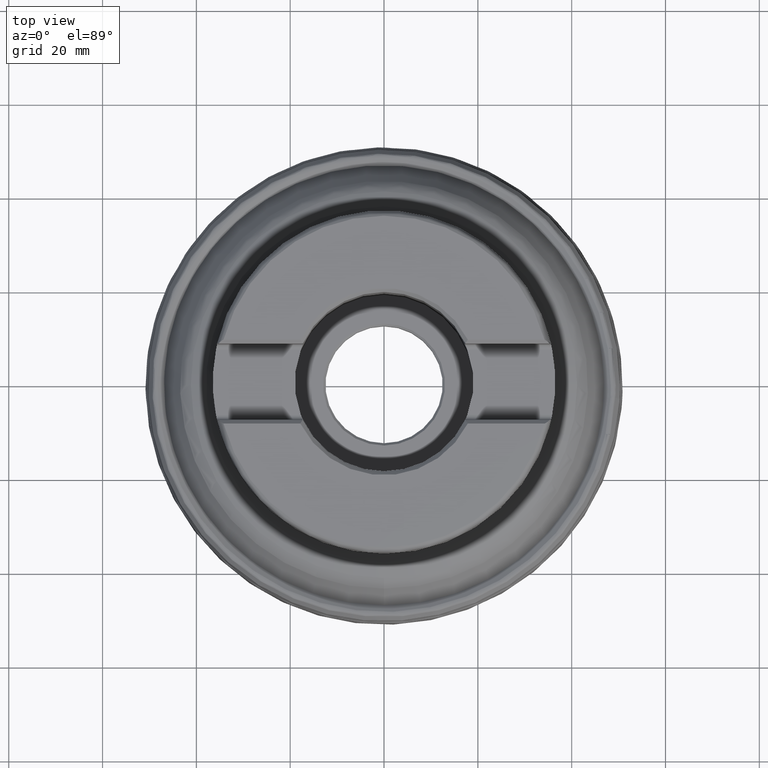
[diagram: clean part render]
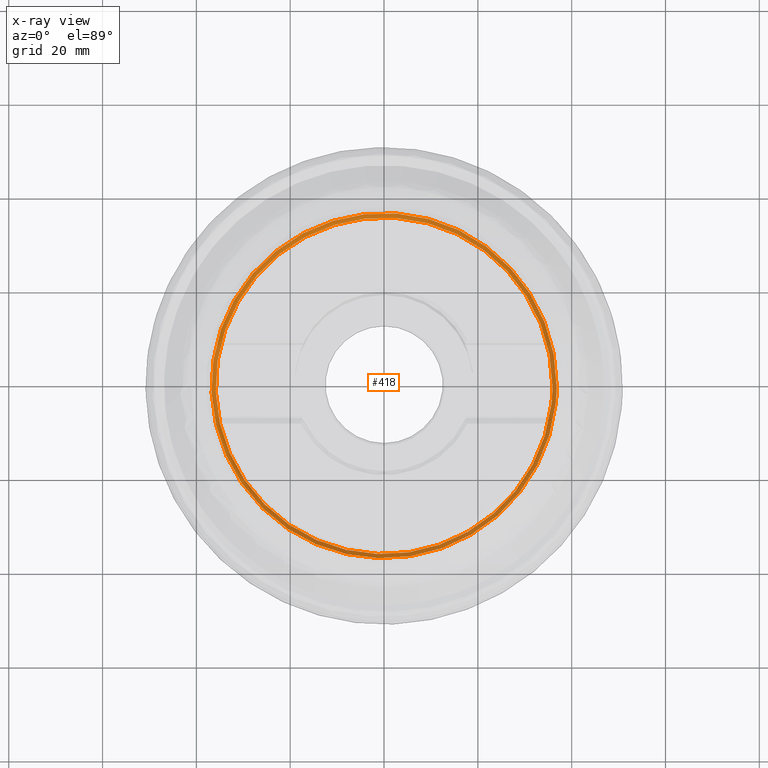
[diagram: x-ray — body ghosted, one internal face saturated and labeled with its STEP entity id]
A machine part, top view, then the same camera in x-ray: the body is ghosted and one INTERNAL B-rep face — a face not visible from any outside direction — is saturated and labeled: STEP entity #418.
In plain terms, the highlighted face is a SurfaceOfRevolution surface.
Its self-contained STEP definition (entity closure, byte-faithful):
#115=SURFACE_OF_REVOLUTION('',#627,#136);
#136=AXIS1_PLACEMENT('',#2319,#1527);
#247=FACE_BOUND('',#567,.T.);
#248=FACE_BOUND('',#568,.T.);
#346=CIRCLE('',#1276,36.7892926203194);
#347=CIRCLE('',#1277,35.8831424024006);
#418=ADVANCED_FACE('',(#247,#248),#115,.F.);
#567=EDGE_LOOP('',(#857));
#568=EDGE_LOOP('',(#858));
#627=LINE('',#2318,#654);
#654=VECTOR('',#1526,1.79261888849913);
#857=ORIENTED_EDGE('',*,*,#1089,.T.);
#858=ORIENTED_EDGE('',*,*,#1090,.F.);
#971=VERTEX_POINT('',#2309);
#972=VERTEX_POINT('',#2317);
#1089=EDGE_CURVE('',#971,#971,#346,.T.);
#1090=EDGE_CURVE('',#972,#972,#347,.T.);
#1276=AXIS2_PLACEMENT_3D('',#2308,#1521,#1522);
#1277=AXIS2_PLACEMENT_3D('',#2316,#1524,#1525);
#1521=DIRECTION('',(0.,0.,1.));
#1522=DIRECTION('',(1.,0.,0.));
#1524=DIRECTION('',(0.,0.,1.));
#1525=DIRECTION('',(1.,0.,0.));
#1526=DIRECTION('',(0.524453379708574,0.146358299859682,0.83876570064258));
#1527=DIRECTION('',(0.,0.,1.));
#2308=CARTESIAN_POINT('',(0.,0.,9.04468280775966));
#2309=CARTESIAN_POINT('',(36.7892926203194,0.,9.04468280775966));
#2316=CARTESIAN_POINT('',(0.,0.,7.54109555450139));
#2317=CARTESIAN_POINT('',(35.8831424024006,0.,7.54109555450139));
#2318=CARTESIAN_POINT('',(35.6515435166895,-4.07030140758023,7.54109555450139));
#2319=CARTESIAN_POINT('',(0.,0.,0.));